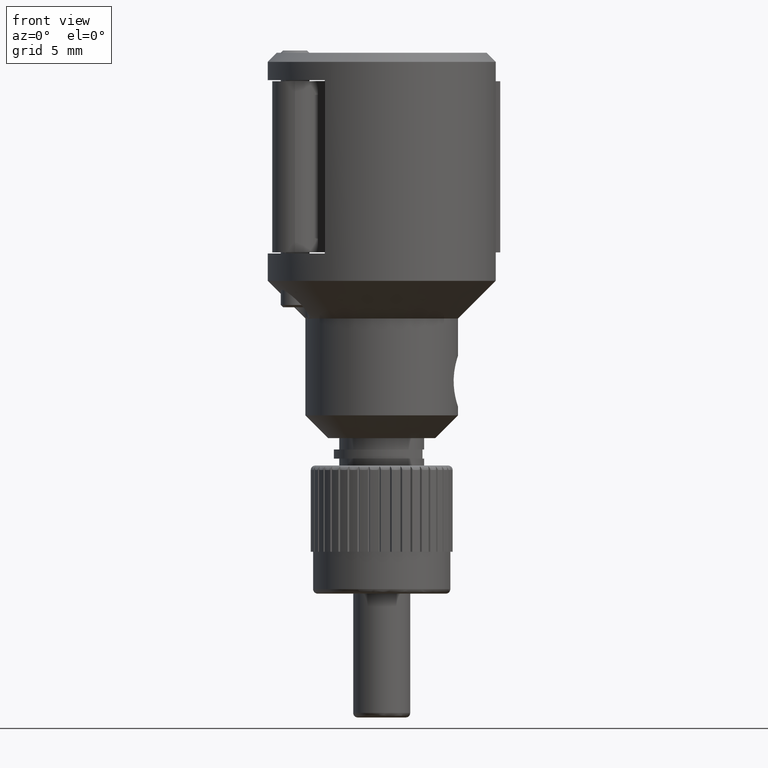
[diagram: clean part render]
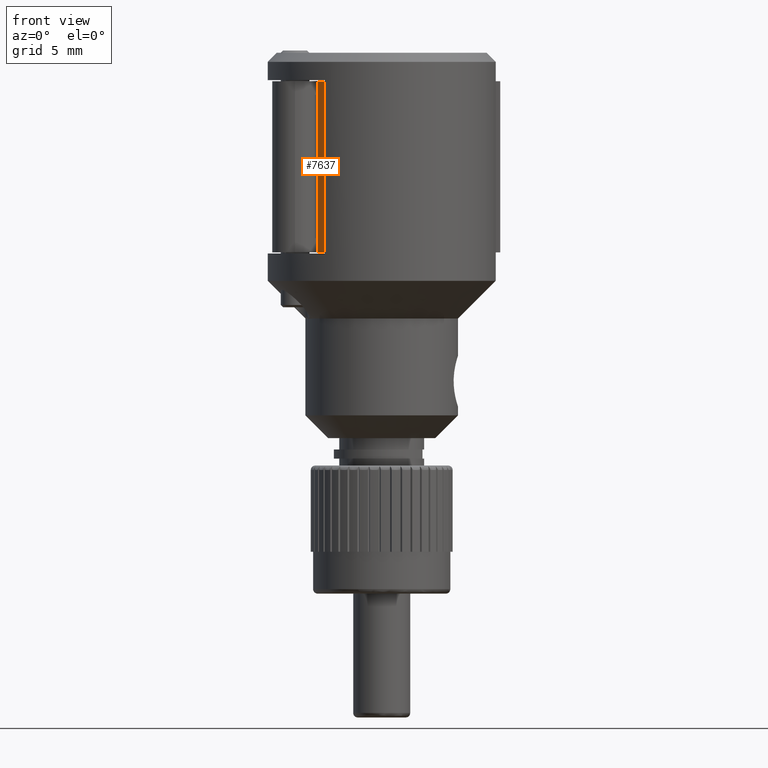
[diagram: same view with one face highlighted and labeled with its STEP entity id]
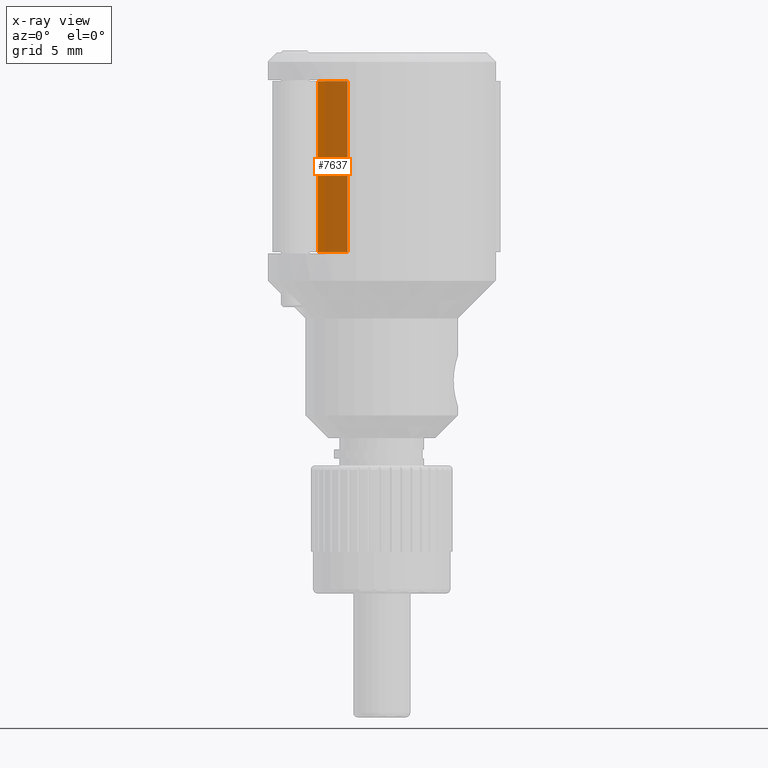
[diagram: x-ray of the same camera — body ghosted, the highlighted face saturated]
A machine part, front view. The second image highlights one B-rep face of the part: STEP entity #7637.
The next image is the same camera in x-ray: the body ghosted, the highlighted face saturated — about 76% of this face is hidden behind the body in this view.
In plain terms, the highlighted planar face has unit normal (0, 1, 0).
Its self-contained STEP definition (entity closure, byte-faithful):
#21 = DIRECTION ( 'NONE',  ( -0.0000000000000000000, -0.0000000000000000000, -1.000000000000000000 ) ) ;
#165 = VECTOR ( 'NONE', #21, 39.37007874015748100 ) ;
#292 = CARTESIAN_POINT ( 'NONE',  ( -0.07499999999999991400, 0.005000000000000014800, 0.6893110236220474400 ) ) ;
#377 = AXIS2_PLACEMENT_3D ( 'NONE', #9718, #5960, #1407 ) ;
#560 = PLANE ( 'NONE',  #377 ) ;
#609 = ORIENTED_EDGE ( 'NONE', *, *, #7707, .T. ) ;
#624 = VERTEX_POINT ( 'NONE', #641 ) ;
#641 = CARTESIAN_POINT ( 'NONE',  ( -0.1400000000000000400, 0.005000000000000014800, 0.3143110236220473800 ) ) ;
#767 = DIRECTION ( 'NONE',  ( 1.000000000000000000, 0.0000000000000000000, 0.0000000000000000000 ) ) ;
#1407 = DIRECTION ( 'NONE',  ( 0.0000000000000000000, -0.0000000000000000000, 1.000000000000000000 ) ) ;
#1418 = CARTESIAN_POINT ( 'NONE',  ( -0.07499999999999991400, 0.005000000000000014800, 0.3143110236220473800 ) ) ;
#1511 = CARTESIAN_POINT ( 'NONE',  ( -0.1400000000000000400, 0.005000000000000014800, 0.3143110236220473800 ) ) ;
#1525 = ORIENTED_EDGE ( 'NONE', *, *, #4118, .T. ) ;
#1943 = ORIENTED_EDGE ( 'NONE', *, *, #7317, .T. ) ;
#2204 = LINE ( 'NONE', #7735, #165 ) ;
#4073 = VECTOR ( 'NONE', #8720, 39.37007874015748100 ) ;
#4118 = EDGE_CURVE ( 'NONE', #8787, #624, #2204, .T. ) ;
#4164 = EDGE_LOOP ( 'NONE', ( #609, #1943, #7607, #1525 ) ) ;
#4288 = LINE ( 'NONE', #6396, #9190 ) ;
#4979 = CARTESIAN_POINT ( 'NONE',  ( -0.07499999999999991400, 0.005000000000000014800, 0.3143110236220473800 ) ) ;
#5960 = DIRECTION ( 'NONE',  ( 0.0000000000000000000, 1.000000000000000000, 0.0000000000000000000 ) ) ;
#6005 = VECTOR ( 'NONE', #767, 39.37007874015748100 ) ;
#6038 = VERTEX_POINT ( 'NONE', #292 ) ;
#6396 = CARTESIAN_POINT ( 'NONE',  ( -0.1400000000000000400, 0.005000000000000014800, 0.6893110236220474400 ) ) ;
#6423 = DIRECTION ( 'NONE',  ( 1.000000000000000000, 0.0000000000000000000, 0.0000000000000000000 ) ) ;
#7062 = LINE ( 'NONE', #1511, #6005 ) ;
#7178 = LINE ( 'NONE', #4979, #4073 ) ;
#7317 = EDGE_CURVE ( 'NONE', #8283, #6038, #7178, .T. ) ;
#7589 = CARTESIAN_POINT ( 'NONE',  ( -0.1400000000000000400, 0.005000000000000014800, 0.6893110236220474400 ) ) ;
#7607 = ORIENTED_EDGE ( 'NONE', *, *, #9426, .F. ) ;
#7637 = ADVANCED_FACE ( 'NONE', ( #8858 ), #560, .F. ) ;
#7707 = EDGE_CURVE ( 'NONE', #624, #8283, #7062, .T. ) ;
#7735 = CARTESIAN_POINT ( 'NONE',  ( -0.1400000000000000400, 0.005000000000000014800, 0.6893110236220474400 ) ) ;
#8283 = VERTEX_POINT ( 'NONE', #1418 ) ;
#8720 = DIRECTION ( 'NONE',  ( -0.0000000000000000000, -0.0000000000000000000, 1.000000000000000000 ) ) ;
#8787 = VERTEX_POINT ( 'NONE', #7589 ) ;
#8858 = FACE_OUTER_BOUND ( 'NONE', #4164, .T. ) ;
#9190 = VECTOR ( 'NONE', #6423, 39.37007874015748100 ) ;
#9426 = EDGE_CURVE ( 'NONE', #8787, #6038, #4288, .T. ) ;
#9718 = CARTESIAN_POINT ( 'NONE',  ( -0.1400000000000000400, 0.005000000000000014800, 0.6893110236220474400 ) ) ;